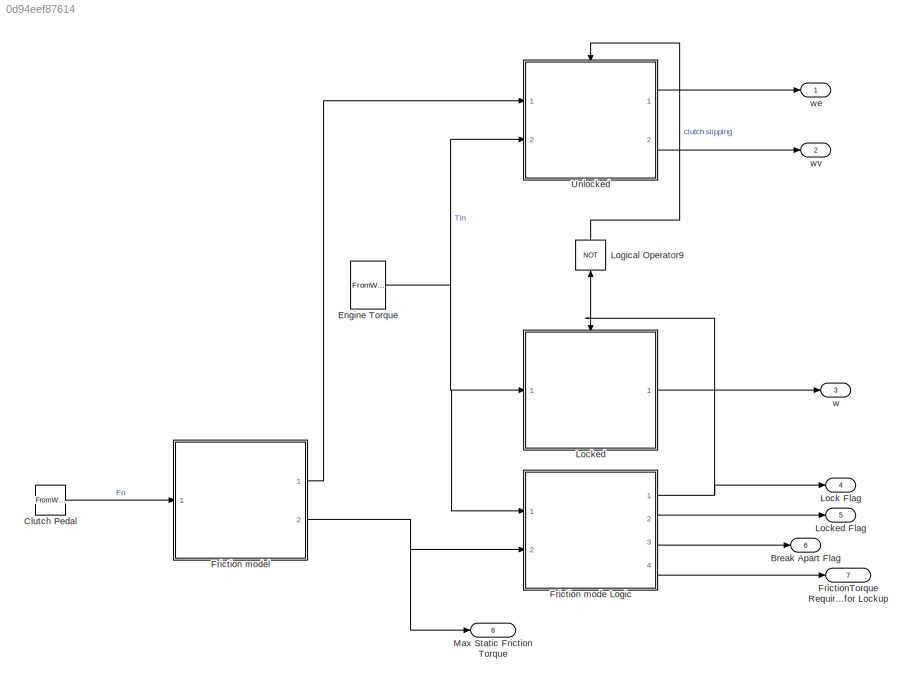
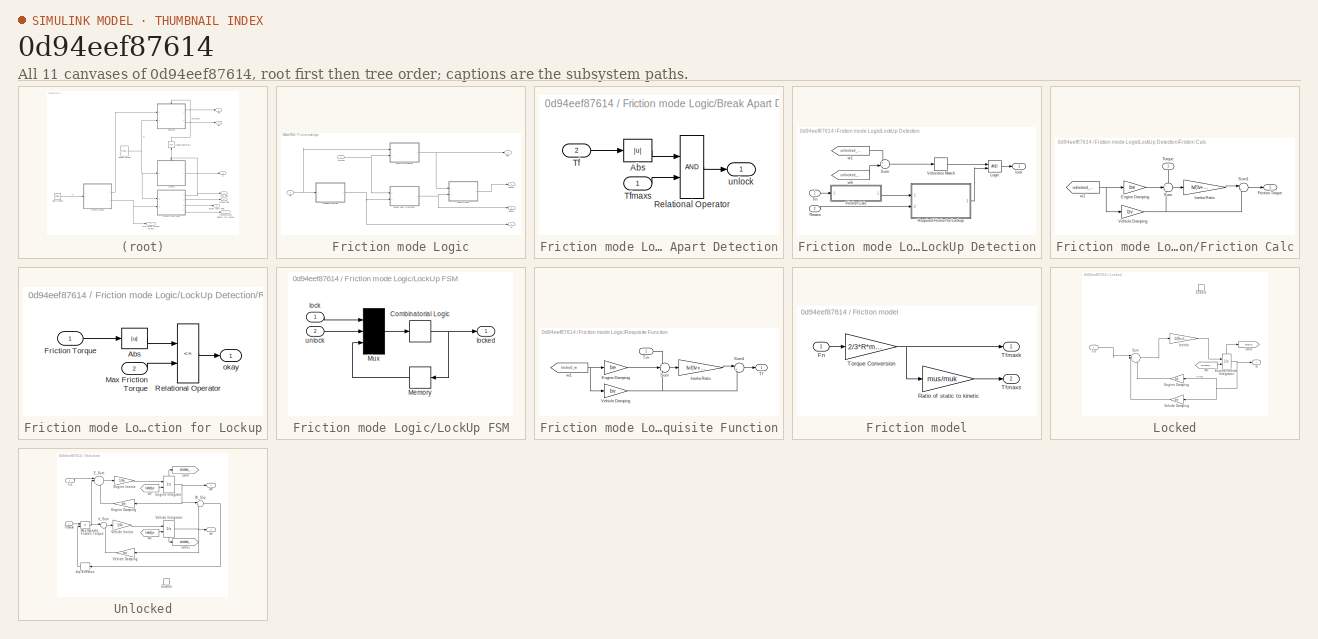
[diagram: thumbnail index - all 11 canvases of the model, root first then tree order]
MODEL slx_0d94eef87614
KIND model
CONFIG AbsTol = auto
CONFIG EnableMultiTasking = off
CONFIG FixedStep = auto
CONFIG MaxStep = auto
CONFIG MinStep = auto
CONFIG RelTol = 1e-3
CONFIG SampleTimeConstraint = Unconstrained
CONFIG SolverName = VariableStepAuto
CONFIG StartTime = 0.0
CONFIG StopTime = 10.0
WORKSPACE source: MATLAB code (in-file)
WORKSPACE code: load sldemo_clutchparam;
BLOCK [Outport] Break Apart Flag
  Port = 6
BLOCK [FromWorkspace] Clutch Pedal
  VariableName = Fn
  ZeroCross = off
BLOCK [FromWorkspace] Engine Torque
  VariableName = Tin
  ZeroCross = off
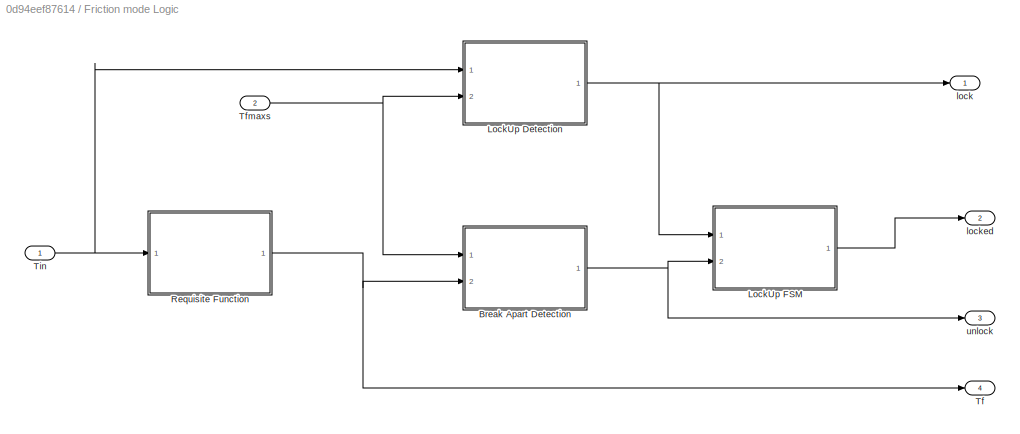
BLOCK [SubSystem] Friction mode Logic
  Ports = [2, 4]
  RequestExecContextInheritance = off
BLOCK [SubSystem] Friction mode Logic/Break Apart Detection
  Ports = [2, 1]
  RequestExecContextInheritance = off
BLOCK [Abs] Friction mode Logic/Break Apart Detection/Abs
BLOCK [RelationalOperator] Friction mode Logic/Break Apart Detection/Relational Operator
  OutDataTypeStr = boolean
  Ports = [2, 1]
BLOCK [Inport] Friction mode Logic/Break Apart Detection/Tf
  Port = 2
BLOCK [Inport] Friction mode Logic/Break Apart Detection/Tfmaxs
BLOCK [Outport] Friction mode Logic/Break Apart Detection/unlock
  InitialOutput = 0
  VectorParamsAs1DForOutWhenUnconnected = off
BLOCK [SubSystem] Friction mode Logic/LockUp Detection
  Ports = [2, 1]
  RequestExecContextInheritance = off
BLOCK [SubSystem] Friction mode Logic/LockUp Detection/Friction Calc
  Ports = [1, 1]
  RequestExecContextInheritance = off
BLOCK [Gain] Friction mode Logic/LockUp Detection/Friction Calc/Engine Damping
  Gain = be
  NameLocation = top
  OutDataTypeStr = Inherit: Same as input
  ParamDataTypeStr = Inherit: Same as input
  SaturateOnIntegerOverflow = on
BLOCK [Outport] Friction mode Logic/LockUp Detection/Friction Calc/Friction Torque
  InitialOutput = 0
  VectorParamsAs1DForOutWhenUnconnected = off
BLOCK [Gain] Friction mode Logic/LockUp Detection/Friction Calc/Inertia Ratio
  Gain = Iv/(Iv+Ie)
  OutDataTypeStr = Inherit: Same as input
  ParamDataTypeStr = Inherit: Same as input
  SaturateOnIntegerOverflow = on
BLOCK [Sum] Friction mode Logic/LockUp Detection/Friction Calc/Sum
  InputSameDT = on
  Inputs = +--
  OutDataTypeStr = Inherit: Same as first input
  Ports = [3, 1]
  SaturateOnIntegerOverflow = on
BLOCK [Sum] Friction mode Logic/LockUp Detection/Friction Calc/Sum1
  InputSameDT = on
  Inputs = |++
  OutDataTypeStr = Inherit: Same as first input
  Ports = [2, 1]
  SaturateOnIntegerOverflow = on
BLOCK [Inport] Friction mode Logic/LockUp Detection/Friction Calc/Torque
  NameLocation = left
BLOCK [Gain] Friction mode Logic/LockUp Detection/Friction Calc/Vehicle Damping
  Gain = bv
  OutDataTypeStr = Inherit: Same as input
  ParamDataTypeStr = Inherit: Same as input
  SaturateOnIntegerOverflow = on
BLOCK [From] Friction mode Logic/LockUp Detection/Friction Calc/w1
  GotoTag = unlocked_we
  TagVisibility = global
BLOCK [Logic] Friction mode Logic/LockUp Detection/Logic
  AttributesFormatString = (%<Operator>)
  IconShape = distinctive
  OutDataTypeStr = boolean
  Ports = [2, 1]
BLOCK [SubSystem] Friction mode Logic/LockUp Detection/Required Friction for Lockup
  Ports = [2, 1]
  RequestExecContextInheritance = off
BLOCK [Abs] Friction mode Logic/LockUp Detection/Required Friction for Lockup/Abs
BLOCK [Inport] Friction mode Logic/LockUp Detection/Required Friction for Lockup/Friction Torque
BLOCK [Inport] Friction mode Logic/LockUp Detection/Required Friction for Lockup/Max Friction Torque
  Port = 2
BLOCK [RelationalOperator] Friction mode Logic/LockUp Detection/Required Friction for Lockup/Relational Operator
  Operator = <=
  OutDataTypeStr = boolean
  Ports = [2, 1]
BLOCK [Outport] Friction mode Logic/LockUp Detection/Required Friction for Lockup/okay
  InitialOutput = 0
  VectorParamsAs1DForOutWhenUnconnected = off
BLOCK [Sum] Friction mode Logic/LockUp Detection/Sum
  InputSameDT = on
  Inputs = +-
  OutDataTypeStr = Inherit: Same as first input
  Ports = [2, 1]
  SaturateOnIntegerOverflow = on
BLOCK [Inport] Friction mode Logic/LockUp Detection/Tfmaxs
  Port = 2
BLOCK [Inport] Friction mode Logic/LockUp Detection/Tin
BLOCK [HitCross] Friction mode Logic/LockUp Detection/Velocities Match
  Ports = [1, 1]
BLOCK [Outport] Friction mode Logic/LockUp Detection/lock
  InitialOutput = 0
  VectorParamsAs1DForOutWhenUnconnected = off
BLOCK [From] Friction mode Logic/LockUp Detection/w1
  GotoTag = unlocked_we
  TagVisibility = global
BLOCK [From] Friction mode Logic/LockUp Detection/w6
  GotoTag = unlocked_wv
  TagVisibility = global
BLOCK [SubSystem] Friction mode Logic/LockUp FSM
  Ports = [2, 1]
  RequestExecContextInheritance = off
BLOCK [CombinatorialLogic] Friction mode Logic/LockUp FSM/Combinatorial Logic
  TruthTable = [0;1;0;0;1;1;1;0]
BLOCK [Memory] Friction mode Logic/LockUp FSM/Memory
BLOCK [Mux] Friction mode Logic/LockUp FSM/Mux
  Inputs = 3
  Ports = [3, 1]
BLOCK [Inport] Friction mode Logic/LockUp FSM/lock
  NameLocation = top
BLOCK [Outport] Friction mode Logic/LockUp FSM/locked
  InitialOutput = 0
  VectorParamsAs1DForOutWhenUnconnected = off
BLOCK [Inport] Friction mode Logic/LockUp FSM/unlock
  Port = 2
BLOCK [SubSystem] Friction mode Logic/Requisite Function
  Ports = [1, 1]
  RequestExecContextInheritance = off
BLOCK [Gain] Friction mode Logic/Requisite Function/Engine Damping
  Gain = be
  NameLocation = top
  OutDataTypeStr = Inherit: Same as input
  ParamDataTypeStr = Inherit: Same as input
  SaturateOnIntegerOverflow = on
BLOCK [Gain] Friction mode Logic/Requisite Function/Inertia Ratio
  Gain = Iv/(Iv+Ie)
  OutDataTypeStr = Inherit: Same as input
  ParamDataTypeStr = Inherit: Same as input
  SaturateOnIntegerOverflow = on
BLOCK [Sum] Friction mode Logic/Requisite Function/Sum
  InputSameDT = on
  Inputs = +--
  OutDataTypeStr = Inherit: Same as first input
  Ports = [3, 1]
  SaturateOnIntegerOverflow = on
BLOCK [Sum] Friction mode Logic/Requisite Function/Sum1
  InputSameDT = on
  Inputs = |++
  OutDataTypeStr = Inherit: Same as first input
  Ports = [2, 1]
  SaturateOnIntegerOverflow = on
BLOCK [Outport] Friction mode Logic/Requisite Function/Tf
  InitialOutput = 0
  VectorParamsAs1DForOutWhenUnconnected = off
BLOCK [Inport] Friction mode Logic/Requisite Function/Tin
BLOCK [Gain] Friction mode Logic/Requisite Function/Vehicle Damping
  Gain = bv
  OutDataTypeStr = Inherit: Same as input
  ParamDataTypeStr = Inherit: Same as input
  SaturateOnIntegerOverflow = on
BLOCK [From] Friction mode Logic/Requisite Function/w1
  GotoTag = locked_w
  NameLocation = top
  TagVisibility = global
BLOCK [Outport] Friction mode Logic/Tf
  Port = 4
BLOCK [Inport] Friction mode Logic/Tfmaxs
  Port = 2
BLOCK [Inport] Friction mode Logic/Tin
BLOCK [Outport] Friction mode Logic/lock
BLOCK [Outport] Friction mode Logic/locked
  Port = 2
BLOCK [Outport] Friction mode Logic/unlock
  Port = 3
BLOCK [SubSystem] Friction model
  Ports = [1, 2]
  RequestExecContextInheritance = off
  TreatAsAtomicUnit = on
BLOCK [Inport] Friction model/Fn
BLOCK [Gain] Friction model/Ratio of static to kinetic
  Gain = mus/muk
  OutDataTypeStr = Inherit: Same as input
  ParamDataTypeStr = Inherit: Same as input
  SaturateOnIntegerOverflow = on
BLOCK [Outport] Friction model/Tfmaxk
  InitialOutput = 0
  VectorParamsAs1DForOutWhenUnconnected = off
BLOCK [Outport] Friction model/Tfmaxs
  InitialOutput = 0
  Port = 2
  VectorParamsAs1DForOutWhenUnconnected = off
BLOCK [Gain] Friction model/Torque Conversion
  Gain = 2/3*R*muk
  OutDataTypeStr = Inherit: Same as input
  ParamDataTypeStr = Inherit: Same as input
  SaturateOnIntegerOverflow = on
BLOCK [Outport] FrictionTorque Required for Lockup
  Port = 7
BLOCK [Outport] Lock Flag	
  Port = 4
BLOCK [SubSystem] Locked
  Ports = [1, 1, 1]
  RequestExecContextInheritance = off
  TreatAsAtomicUnit = on
BLOCK [Outport] Locked Flag
  Port = 5
BLOCK [EnablePort] Locked/Enable
  Ports = []
BLOCK [Gain] Locked/Engine Damping
  Gain = be
  OutDataTypeStr = Inherit: Same as input
  ParamDataTypeStr = Inherit: Same as input
  SaturateOnIntegerOverflow = on
BLOCK [Integrator] Locked/Engine//Vehicle Integrator
  InitialConditionSource = external
  Ports = [2, 1, 0, 0, 1]
  ShowStatePort = on
BLOCK [Goto] Locked/Goto
  GotoTag = locked_w
  NameLocation = top
  TagVisibility = global
BLOCK [Gain] Locked/Inertia
  Gain = 1/(Iv+Ie)
  OutDataTypeStr = Inherit: Same as input
  ParamDataTypeStr = Inherit: Same as input
  SaturateOnIntegerOverflow = on
BLOCK [Sum] Locked/Sum
  InputSameDT = on
  Inputs = ||+--
  OutDataTypeStr = Inherit: Same as first input
  Ports = [3, 1]
  SaturateOnIntegerOverflow = on
BLOCK [Inport] Locked/Tin
BLOCK [Gain] Locked/Vehicle Damping
  Gain = bv
  OutDataTypeStr = Inherit: Same as input
  ParamDataTypeStr = Inherit: Same as input
  SaturateOnIntegerOverflow = on
BLOCK [Outport] Locked/w
  InitialOutput = 0
  VectorParamsAs1DForOutWhenUnconnected = off
BLOCK [From] Locked/w0
  GotoTag = unlocked_we
  TagVisibility = global
BLOCK [Logic] Logical Operator9
  IconShape = distinctive
  Inputs = 1
  NameLocation = left
  Operator = NOT
  OutDataTypeStr = boolean
  Ports = [1, 1]
BLOCK [Outport] Max Static Friction Torque
  Port = 8
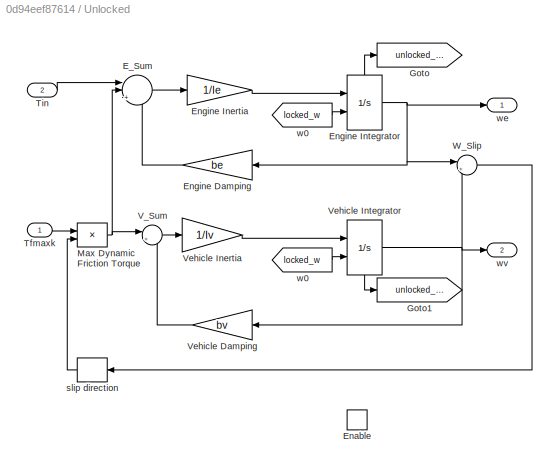
BLOCK [SubSystem] Unlocked
  Ports = [2, 2, 1]
  RequestExecContextInheritance = off
  TreatAsAtomicUnit = on
BLOCK [Sum] Unlocked/E_Sum
  InputSameDT = on
  Inputs = ||+--
  NameLocation = top
  OutDataTypeStr = Inherit: Same as first input
  Ports = [3, 1]
  SaturateOnIntegerOverflow = on
BLOCK [EnablePort] Unlocked/Enable
  Ports = []
BLOCK [Gain] Unlocked/Engine Damping
  Gain = be
  OutDataTypeStr = Inherit: Same as input
  ParamDataTypeStr = Inherit: Same as input
  SaturateOnIntegerOverflow = on
BLOCK [Gain] Unlocked/Engine Inertia
  Gain = 1/Ie
  OutDataTypeStr = Inherit: Same as input
  ParamDataTypeStr = Inherit: Same as input
  SaturateOnIntegerOverflow = on
BLOCK [Integrator] Unlocked/Engine Integrator
  InitialConditionSource = external
  Ports = [2, 1, 0, 0, 1]
  ShowStatePort = on
BLOCK [Goto] Unlocked/Goto
  GotoTag = unlocked_we
  TagVisibility = global
BLOCK [Goto] Unlocked/Goto1
  GotoTag = unlocked_wv
  TagVisibility = global
BLOCK [Product] Unlocked/Max Dynamic Friction Torque
  InputSameDT = on
  OutDataTypeStr = Inherit: Same as first input
  Ports = [2, 1]
  RndMeth = Zero
  SaturateOnIntegerOverflow = on
BLOCK [Inport] Unlocked/Tfmaxk
BLOCK [Inport] Unlocked/Tin
  Port = 2
BLOCK [Sum] Unlocked/V_Sum
  InputSameDT = on
  Inputs = |+-
  NameLocation = top
  OutDataTypeStr = Inherit: Same as first input
  Ports = [2, 1]
  SaturateOnIntegerOverflow = on
BLOCK [Gain] Unlocked/Vehicle Damping
  Gain = bv
  OutDataTypeStr = Inherit: Same as input
  ParamDataTypeStr = Inherit: Same as input
  SaturateOnIntegerOverflow = on
BLOCK [Gain] Unlocked/Vehicle Inertia
  Gain = 1/Iv
  OutDataTypeStr = Inherit: Same as input
  ParamDataTypeStr = Inherit: Same as input
  SaturateOnIntegerOverflow = on
BLOCK [Integrator] Unlocked/Vehicle Integrator
  InitialConditionSource = external
  NameLocation = top
  Ports = [2, 1, 0, 0, 1]
  ShowStatePort = on
BLOCK [Sum] Unlocked/W_Slip
  InputSameDT = on
  Inputs = |+-
  NameLocation = top
  OutDataTypeStr = Inherit: Same as first input
  Ports = [2, 1]
  SaturateOnIntegerOverflow = on
BLOCK [Signum] Unlocked/slip direction
BLOCK [From] Unlocked/w0
  GotoTag = locked_w
  TagVisibility = global
BLOCK [From] Unlocked/w0 
  GotoTag = locked_w
  TagVisibility = global
BLOCK [Outport] Unlocked/we
  InitialOutput = 0
  VectorParamsAs1DForOutWhenUnconnected = off
BLOCK [Outport] Unlocked/wv
  InitialOutput = 0
  Port = 2
  VectorParamsAs1DForOutWhenUnconnected = off
BLOCK [Outport] w 
  Port = 3
BLOCK [Outport] we
BLOCK [Outport] wv
  Port = 2
LINE Clutch Pedal:1 -> Friction model:1
NET Engine Torque:1 -> Friction mode Logic:1, Locked:1, Unlocked:2
LINE Friction mode Logic/Break Apart Detection/Abs:1 -> Friction mode Logic/Break Apart Detection/Relational Operator:1
LINE Friction mode Logic/Break Apart Detection/Relational Operator:1 -> Friction mode Logic/Break Apart Detection/unlock:1
LINE Friction mode Logic/Break Apart Detection/Tf:1 -> Friction mode Logic/Break Apart Detection/Abs:1
LINE Friction mode Logic/Break Apart Detection/Tfmaxs:1 -> Friction mode Logic/Break Apart Detection/Relational Operator:2
NET Friction mode Logic/Break Apart Detection:1 -> Friction mode Logic/LockUp FSM:2, Friction mode Logic/unlock:1
LINE Friction mode Logic/LockUp Detection/Friction Calc/Engine Damping:1 -> Friction mode Logic/LockUp Detection/Friction Calc/Sum:2
LINE Friction mode Logic/LockUp Detection/Friction Calc/Inertia Ratio:1 -> Friction mode Logic/LockUp Detection/Friction Calc/Sum1:1
LINE Friction mode Logic/LockUp Detection/Friction Calc/Sum1:1 -> Friction mode Logic/LockUp Detection/Friction Calc/Friction Torque:1
LINE Friction mode Logic/LockUp Detection/Friction Calc/Sum:1 -> Friction mode Logic/LockUp Detection/Friction Calc/Inertia Ratio:1
LINE Friction mode Logic/LockUp Detection/Friction Calc/Torque:1 -> Friction mode Logic/LockUp Detection/Friction Calc/Sum:1
NET Friction mode Logic/LockUp Detection/Friction Calc/Vehicle Damping:1 -> Friction mode Logic/LockUp Detection/Friction Calc/Sum1:2, Friction mode Logic/LockUp Detection/Friction Calc/Sum:3
NET Friction mode Logic/LockUp Detection/Friction Calc/w1:1 -> Friction mode Logic/LockUp Detection/Friction Calc/Engine Damping:1, Friction mode Logic/LockUp Detection/Friction Calc/Vehicle Damping:1
LINE Friction mode Logic/LockUp Detection/Friction Calc:1 -> Friction mode Logic/LockUp Detection/Required Friction for Lockup:1
LINE Friction mode Logic/LockUp Detection/Logic:1 -> Friction mode Logic/LockUp Detection/lock:1
LINE Friction mode Logic/LockUp Detection/Required Friction for Lockup/Abs:1 -> Friction mode Logic/LockUp Detection/Required Friction for Lockup/Relational Operator:1
LINE Friction mode Logic/LockUp Detection/Required Friction for Lockup/Friction Torque:1 -> Friction mode Logic/LockUp Detection/Required Friction for Lockup/Abs:1
LINE Friction mode Logic/LockUp Detection/Required Friction for Lockup/Max Friction Torque:1 -> Friction mode Logic/LockUp Detection/Required Friction for Lockup/Relational Operator:2
LINE Friction mode Logic/LockUp Detection/Required Friction for Lockup/Relational Operator:1 -> Friction mode Logic/LockUp Detection/Required Friction for Lockup/okay:1
LINE Friction mode Logic/LockUp Detection/Required Friction for Lockup:1 -> Friction mode Logic/LockUp Detection/Logic:2
LINE Friction mode Logic/LockUp Detection/Sum:1 -> Friction mode Logic/LockUp Detection/Velocities Match:1
LINE Friction mode Logic/LockUp Detection/Tfmaxs:1 -> Friction mode Logic/LockUp Detection/Required Friction for Lockup:2
LINE Friction mode Logic/LockUp Detection/Tin:1 -> Friction mode Logic/LockUp Detection/Friction Calc:1
LINE Friction mode Logic/LockUp Detection/Velocities Match:1 -> Friction mode Logic/LockUp Detection/Logic:1
LINE Friction mode Logic/LockUp Detection/w1:1 -> Friction mode Logic/LockUp Detection/Sum:1
LINE Friction mode Logic/LockUp Detection/w6:1 -> Friction mode Logic/LockUp Detection/Sum:2
NET Friction mode Logic/LockUp Detection:1 -> Friction mode Logic/LockUp FSM:1, Friction mode Logic/lock:1
NET Friction mode Logic/LockUp FSM/Combinatorial Logic:1 -> Friction mode Logic/LockUp FSM/Memory:1, Friction mode Logic/LockUp FSM/locked:1
LINE Friction mode Logic/LockUp FSM/Memory:1 -> Friction mode Logic/LockUp FSM/Mux:3
LINE Friction mode Logic/LockUp FSM/Mux:1 -> Friction mode Logic/LockUp FSM/Combinatorial Logic:1
LINE Friction mode Logic/LockUp FSM/lock:1 -> Friction mode Logic/LockUp FSM/Mux:1
LINE Friction mode Logic/LockUp FSM/unlock:1 -> Friction mode Logic/LockUp FSM/Mux:2
LINE Friction mode Logic/LockUp FSM:1 -> Friction mode Logic/locked:1
LINE Friction mode Logic/Requisite Function/Engine Damping:1 -> Friction mode Logic/Requisite Function/Sum:2
LINE Friction mode Logic/Requisite Function/Inertia Ratio:1 -> Friction mode Logic/Requisite Function/Sum1:1
LINE Friction mode Logic/Requisite Function/Sum1:1 -> Friction mode Logic/Requisite Function/Tf:1
LINE Friction mode Logic/Requisite Function/Sum:1 -> Friction mode Logic/Requisite Function/Inertia Ratio:1
LINE Friction mode Logic/Requisite Function/Tin:1 -> Friction mode Logic/Requisite Function/Sum:1
NET Friction mode Logic/Requisite Function/Vehicle Damping:1 -> Friction mode Logic/Requisite Function/Sum1:2, Friction mode Logic/Requisite Function/Sum:3
NET Friction mode Logic/Requisite Function/w1:1 -> Friction mode Logic/Requisite Function/Engine Damping:1, Friction mode Logic/Requisite Function/Vehicle Damping:1
NET Friction mode Logic/Requisite Function:1 -> Friction mode Logic/Break Apart Detection:2, Friction mode Logic/Tf:1
NET Friction mode Logic/Tfmaxs:1 -> Friction mode Logic/Break Apart Detection:1, Friction mode Logic/LockUp Detection:2
NET Friction mode Logic/Tin:1 -> Friction mode Logic/LockUp Detection:1, Friction mode Logic/Requisite Function:1
NET Friction mode Logic:1 -> Lock Flag	:1, Locked:enable, Logical Operator9:1
LINE Friction mode Logic:2 -> Locked Flag:1
LINE Friction mode Logic:3 -> Break Apart Flag:1
LINE Friction mode Logic:4 -> FrictionTorque Required for Lockup:1
LINE Friction model/Fn:1 -> Friction model/Torque Conversion:1
LINE Friction model/Ratio of static to kinetic:1 -> Friction model/Tfmaxs:1
NET Friction model/Torque Conversion:1 -> Friction model/Ratio of static to kinetic:1, Friction model/Tfmaxk:1
LINE Friction model:1 -> Unlocked:1
NET Friction model:2 -> Friction mode Logic:2, Max Static Friction Torque:1
LINE Locked/Engine Damping:1 -> Locked/Sum:3
NET Locked/Engine//Vehicle Integrator:1 -> Locked/Engine Damping:1, Locked/Vehicle Damping:1, Locked/w:1
LINE Locked/Engine//Vehicle Integrator:state -> Locked/Goto:1
LINE Locked/Inertia:1 -> Locked/Engine//Vehicle Integrator:1
LINE Locked/Sum:1 -> Locked/Inertia:1
LINE Locked/Tin:1 -> Locked/Sum:1
LINE Locked/Vehicle Damping:1 -> Locked/Sum:2
LINE Locked/w0:1 -> Locked/Engine//Vehicle Integrator:2
LINE Locked:1 -> w :1
LINE Logical Operator9:1 -> Unlocked:enable
LINE Unlocked/E_Sum:1 -> Unlocked/Engine Inertia:1
LINE Unlocked/Engine Damping:1 -> Unlocked/E_Sum:3
LINE Unlocked/Engine Inertia:1 -> Unlocked/Engine Integrator:1
NET Unlocked/Engine Integrator:1 -> Unlocked/Engine Damping:1, Unlocked/W_Slip:1, Unlocked/we:1
LINE Unlocked/Engine Integrator:state -> Unlocked/Goto:1
NET Unlocked/Max Dynamic Friction Torque:1 -> Unlocked/E_Sum:2, Unlocked/V_Sum:1
LINE Unlocked/Tfmaxk:1 -> Unlocked/Max Dynamic Friction Torque:1
LINE Unlocked/Tin:1 -> Unlocked/E_Sum:1
LINE Unlocked/V_Sum:1 -> Unlocked/Vehicle Inertia:1
LINE Unlocked/Vehicle Damping:1 -> Unlocked/V_Sum:2
LINE Unlocked/Vehicle Inertia:1 -> Unlocked/Vehicle Integrator:1
NET Unlocked/Vehicle Integrator:1 -> Unlocked/Vehicle Damping:1, Unlocked/W_Slip:2, Unlocked/wv:1
LINE Unlocked/Vehicle Integrator:state -> Unlocked/Goto1:1
LINE Unlocked/W_Slip:1 -> Unlocked/slip direction:1
LINE Unlocked/slip direction:1 -> Unlocked/Max Dynamic Friction Torque:2
LINE Unlocked/w0 :1 -> Unlocked/Engine Integrator:2
LINE Unlocked/w0:1 -> Unlocked/Vehicle Integrator:2
LINE Unlocked:1 -> we:1
LINE Unlocked:2 -> wv:1
note: NET lines group one-source signal fan-out (src -> all destinations, sorted); 1:1 wires keep LINE
